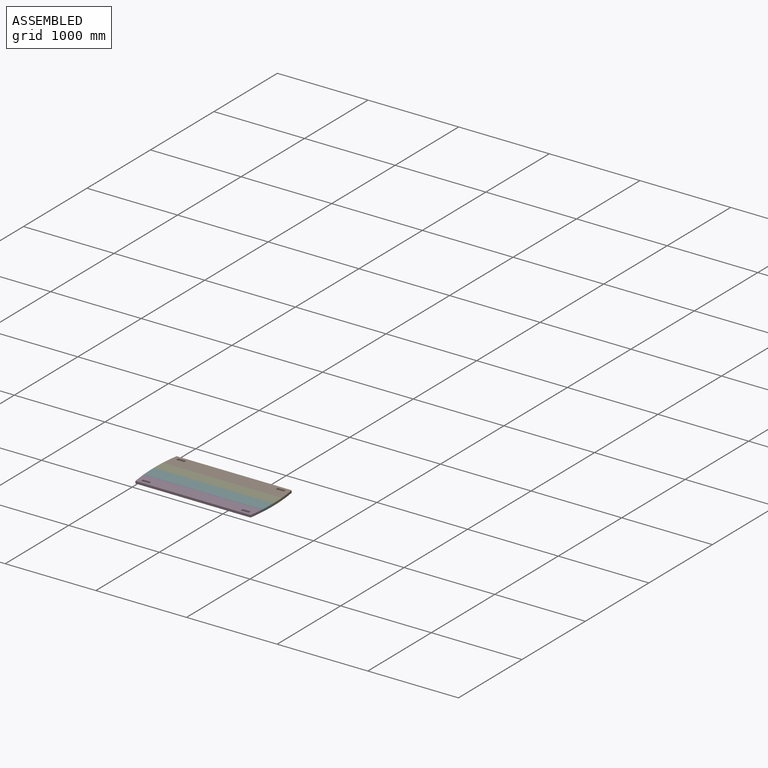
[diagram: assembled view]
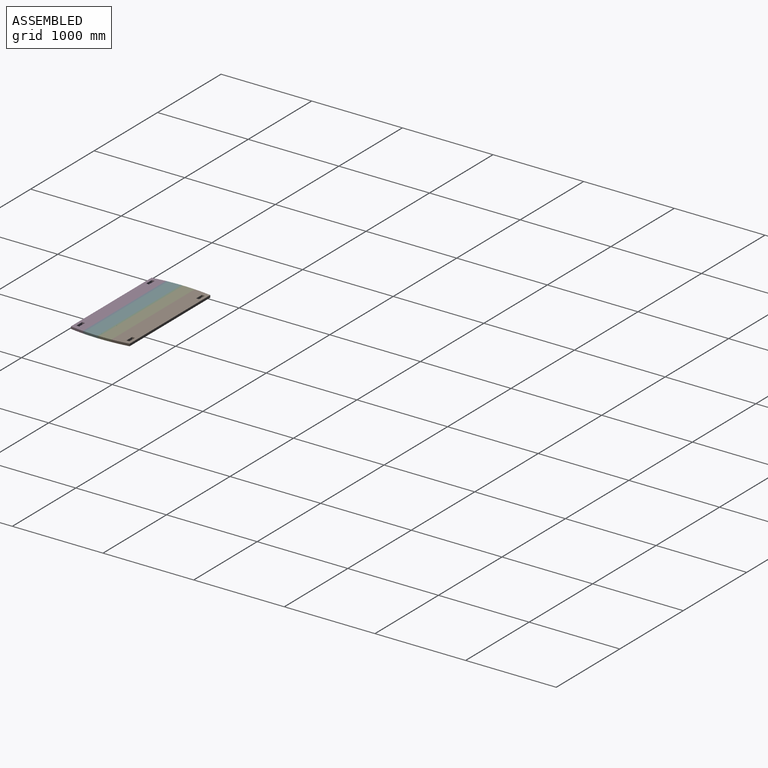
[diagram: assembled view, second angle]
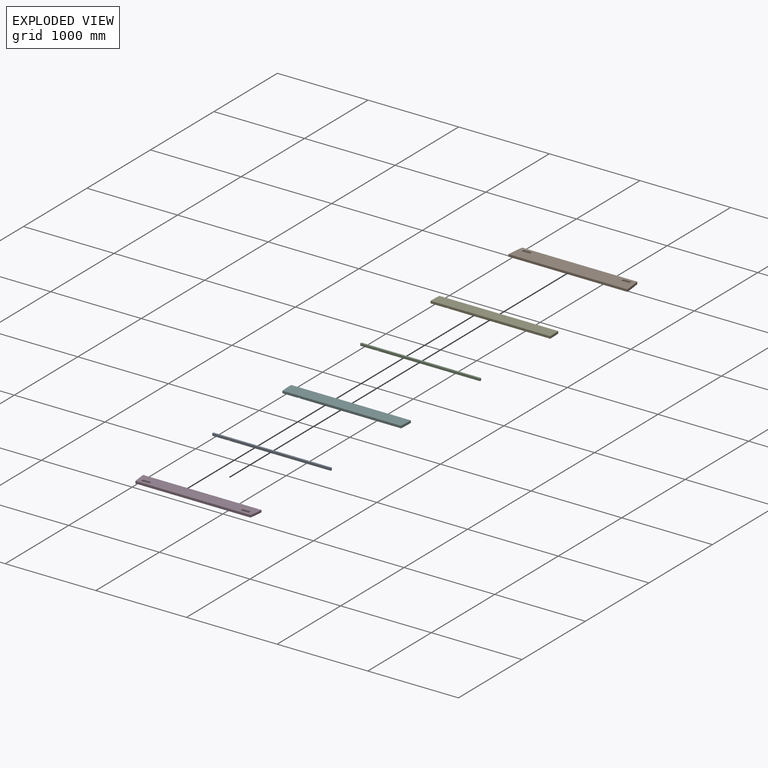
[diagram: exploded view]
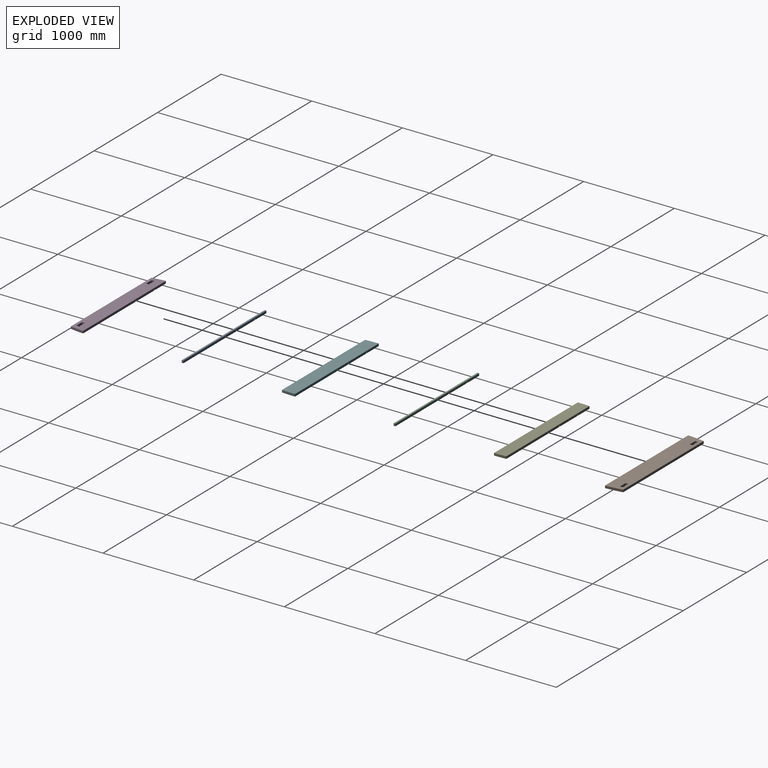
[diagram: exploded view, second angle]
ASSEMBLY  parts=6 mates=5
PART A: 14 faces, bbox 1308.7x19.1x25.4 mm
  f0: plane 279.38x19.05mm, normal (0,0,-1), area 5322.2mm2, adj f2,f3,f8,f12
  f1: plane 832.12x19.05mm, normal (0,0,-1), area 15837.4mm2, adj f2,f3,f5,f9
  f2: plane 1308.65x25.4mm, normal (0,1,0), area 32916.9mm2, adj f0,f1,f4,f5,f6,f7,f8,f9
  f3: plane 1305.55x25.4mm, normal (0,-1,0), area 32838.3mm2, adj f0,f1,f4,f5,f6,f7,f8,f9
  f4: cylinder r=2077.24mm len=25.4mm, axis (0,0,-1), area 485.5mm2, adj f2,f3,f6,f7
  f5: cylinder r=2077.24mm len=25.4mm, axis (0,0,-1), area 485.5mm2, adj f1,f2,f3,f6
  f6: plane 1308.65x19.05mm, normal (0,0,1), area 24900.8mm2, adj f2,f3,f4,f5
  f7: plane 178.07x19.05mm, normal (0,0,-1), area 3377.7mm2, adj f2,f3,f4,f11
  f8: plane 19.05x12.7mm, normal (0.97,0,0.24), area 249.3mm2, adj f0,f2,f3,f10
  f9: plane 19.05x12.7mm, normal (-0.97,0,0.24), area 249.3mm2, adj f1,f2,f3,f10
  f10: plane 19.05x15.88mm, normal (0,0,-1), area 302.4mm2, adj f2,f3,f8,f9
  f11: plane 19.05x12.7mm, normal (0.97,0,0.24), area 249.3mm2, adj f2,f3,f7,f13
  f12: plane 19.05x12.7mm, normal (-0.97,0,0.24), area 249.3mm2, adj f0,f2,f3,f13
  f13: plane 19.05x15.88mm, normal (0,0,-1), area 302.4mm2, adj f2,f3,f11,f12
PART B: 14 faces, bbox 1311.6x185.7x25.4 mm
  f0: plane 1311.61x185.74mm, normal (0,0,1), area 234629.6mm2, adj f2,f3,f4,f5,f6,f7,f8,f9
  f1: plane 1311.61x185.74mm, normal (0,0,-1), area 234629.6mm2, adj f2,f3,f4,f5,f6,f7,f8,f9
  f2: cylinder r=2077.24mm len=185.74mm, axis (0,0,-1), area 4748.8mm2, adj f0,f1,f3,f5
  f3: plane 1311.61x25.4mm, normal (0,-1,0), area 33314.8mm2, adj f0,f1,f2,f4
  f4: cylinder r=2077.24mm len=185.74mm, axis (0,0,-1), area 4748.8mm2, adj f0,f1,f3,f5
  f5: plane 1270x25.4mm, normal (0,1,0), area 32258mm2, adj f0,f1,f2,f4
  f6: plane 31.75x25.4mm, normal (-1,0,0), area 806.4mm2, adj f0,f1,f7,f9
  f7: plane 88.9x25.4mm, normal (0,-1,0), area 2258.1mm2, adj f0,f1,f6,f8
  f8: plane 31.75x25.4mm, normal (1,0,0), area 806.4mm2, adj f0,f1,f7,f9
  f9: plane 88.9x25.4mm, normal (0,1,0), area 2258.1mm2, adj f0,f1,f6,f8
  f10: plane 88.9x25.4mm, normal (0,1,0), area 2258.1mm2, adj f0,f1,f11,f13
  f11: plane 31.75x25.4mm, normal (-1,0,0), area 806.4mm2, adj f0,f1,f10,f12
  f12: plane 88.9x25.4mm, normal (0,-1,0), area 2258.1mm2, adj f0,f1,f11,f13
  f13: plane 31.75x25.4mm, normal (1,0,0), area 806.4mm2, adj f0,f1,f10,f12
PART C: 14 faces, bbox 1320.8x19.1x25.4 mm
  f0: plane 279.38x19.05mm, normal (0,0,-1), area 5322.2mm2, adj f2,f3,f8,f12
  f1: plane 838.19x19.05mm, normal (0,0,-1), area 15967.4mm2, adj f2,f3,f4,f9
  f2: plane 1320.78x25.4mm, normal (0,1,0), area 33225mm2, adj f0,f1,f4,f5,f6,f7,f8,f9
  f3: plane 1320.72x25.4mm, normal (0,-1,0), area 33223.6mm2, adj f0,f1,f4,f5,f6,f7,f8,f9
  f4: cylinder r=2077.24mm len=25.4mm, axis (0,0,-1), area 483.9mm2, adj f1,f2,f3,f6
  f5: cylinder r=2077.24mm len=25.4mm, axis (0,0,-1), area 483.9mm2, adj f2,f3,f6,f7
  f6: plane 1320.8x19.05mm, normal (0,0,1), area 25160.9mm2, adj f2,f3,f4,f5
  f7: plane 184.14x19.05mm, normal (0,0,-1), area 3507.7mm2, adj f2,f3,f5,f11
  f8: plane 19.05x12.7mm, normal (0.97,0,0.24), area 249.3mm2, adj f0,f2,f3,f10
  f9: plane 19.05x12.7mm, normal (-0.97,0,0.24), area 249.3mm2, adj f1,f2,f3,f10
  f10: plane 19.05x15.88mm, normal (0,0,-1), area 302.4mm2, adj f2,f3,f8,f9
  f11: plane 19.05x12.7mm, normal (0.97,0,0.24), area 249.3mm2, adj f2,f3,f7,f13
  f12: plane 19.05x12.7mm, normal (-0.97,0,0.24), area 249.3mm2, adj f0,f2,f3,f13
  f13: plane 19.05x15.88mm, normal (0,0,-1), area 302.4mm2, adj f2,f3,f11,f12
PART D: 22 faces, bbox 1305.6x146.1x25.4 mm
  f0: plane 1305.55x25.4mm, normal (0,1,0), area 32838.3mm2, adj f1,f2,f3,f4,f14,f15,f16,f18
  f1: plane 1305.55x146.05mm, normal (0,0,1), area 182690.3mm2, adj f0,f3,f4,f5,f6,f7,f8,f9
  f2: plane 1305.55x146.05mm, normal (0,0,-1), area 181963.2mm2, adj f0,f3,f4,f5,f6,f7,f8,f9
  f3: cylinder r=2077.24mm len=146.05mm, axis (0,0,-1), area 3737.8mm2, adj f0,f1,f2,f5
  f4: cylinder r=2077.24mm len=146.05mm, axis (0,0,-1), area 3737.8mm2, adj f0,f1,f2,f5
  f5: plane 1270x25.4mm, normal (0,-1,0), area 32258mm2, adj f1,f2,f3,f4
  f6: plane 31.75x25.4mm, normal (-1,0,0), area 806.4mm2, adj f1,f2,f7,f9
  f7: plane 88.9x25.4mm, normal (0,-1,0), area 2258.1mm2, adj f1,f2,f6,f8
  f8: plane 31.75x25.4mm, normal (1,0,0), area 806.4mm2, adj f1,f2,f7,f9
  f9: plane 88.9x25.4mm, normal (0,1,0), area 2258.1mm2, adj f1,f2,f6,f8
  f10: plane 88.9x25.4mm, normal (0,1,0), area 2258.1mm2, adj f1,f2,f11,f13
  f11: plane 31.75x25.4mm, normal (-1,0,0), area 806.4mm2, adj f1,f2,f10,f12
  f12: plane 88.9x25.4mm, normal (0,-1,0), area 2258.1mm2, adj f1,f2,f11,f13
  f13: plane 31.75x25.4mm, normal (1,0,0), area 806.4mm2, adj f1,f2,f10,f12
  f14: plane 38.1x12.7mm, normal (0.97,0,0.24), area 498.7mm2, adj f0,f2,f16,f17
  f15: plane 38.1x12.7mm, normal (-0.97,0,0.24), area 498.7mm2, adj f0,f2,f16,f17
  f16: plane 38.1x15.88mm, normal (0,0,-1), area 604.8mm2, adj f0,f14,f15,f17
  f17: plane 15.88x12.7mm, normal (0,1,0), area 161.4mm2, adj f2,f14,f15,f16
  f18: plane 38.1x12.7mm, normal (0.97,0,0.24), area 498.7mm2, adj f0,f2,f20,f21
  f19: plane 38.1x12.7mm, normal (-0.97,0,0.24), area 498.7mm2, adj f0,f2,f20,f21
  f20: plane 38.1x15.88mm, normal (0,0,-1), area 604.8mm2, adj f0,f18,f19,f21
  f21: plane 15.88x12.7mm, normal (0,1,0), area 161.4mm2, adj f2,f18,f19,f20
PART E: 14 faces, bbox 1320.8x131.8x25.4 mm
  f0: plane 279.38x131.76mm, normal (0,0,-1), area 36812.2mm2, adj f2,f3,f8,f12
  f1: plane 838.18x131.76mm, normal (0,0,-1), area 110230.7mm2, adj f2,f3,f5,f9
  f2: plane 1311.61x25.4mm, normal (0,1,0), area 32992mm2, adj f0,f1,f4,f5,f6,f7,f8,f9
  f3: plane 1320.78x25.4mm, normal (0,-1,0), area 33225mm2, adj f0,f1,f4,f5,f6,f7,f8,f9
  f4: cylinder r=2077.24mm len=131.76mm, axis (0,0,-1), area 3349.4mm2, adj f2,f3,f6,f7
  f5: cylinder r=2077.24mm len=131.76mm, axis (0,0,-1), area 3349.4mm2, adj f1,f2,f3,f6
  f6: plane 1320.78x131.76mm, normal (0,0,1), area 173608.9mm2, adj f2,f3,f4,f5
  f7: plane 184.13x131.76mm, normal (0,0,-1), area 24051.4mm2, adj f2,f3,f4,f11
  f8: plane 131.76x12.7mm, normal (0.97,0,0.24), area 1724.6mm2, adj f0,f2,f3,f10
  f9: plane 131.76x12.7mm, normal (-0.97,0,0.24), area 1724.6mm2, adj f1,f2,f3,f10
  f10: plane 131.76x15.88mm, normal (0,0,-1), area 2091.7mm2, adj f2,f3,f8,f9
  f11: plane 131.76x12.7mm, normal (0.97,0,0.24), area 1724.6mm2, adj f2,f3,f7,f13
  f12: plane 131.76x12.7mm, normal (-0.97,0,0.24), area 1724.6mm2, adj f0,f2,f3,f13
  f13: plane 131.76x15.88mm, normal (0,0,-1), area 2091.7mm2, adj f2,f3,f11,f12
PART F: 14 faces, bbox 1320.7x146.1x25.4 mm
  f0: plane 279.38x146.05mm, normal (0,0,-1), area 40803.9mm2, adj f2,f3,f8,f12
  f1: plane 838.15x146.05mm, normal (0,0,-1), area 122096.7mm2, adj f2,f3,f5,f9
  f2: plane 1320.72x25.4mm, normal (0,1,0), area 33223.6mm2, adj f0,f1,f4,f5,f6,f7,f8,f9
  f3: plane 1308.65x25.4mm, normal (0,-1,0), area 32916.9mm2, adj f0,f1,f4,f5,f6,f7,f8,f9
  f4: cylinder r=2077.24mm len=146.05mm, axis (0,0,-1), area 3713.6mm2, adj f2,f3,f6,f7
  f5: cylinder r=2077.24mm len=146.05mm, axis (0,0,-1), area 3713.6mm2, adj f1,f2,f3,f6
  f6: plane 1320.72x146.05mm, normal (0,0,1), area 192260.6mm2, adj f2,f3,f4,f5
  f7: plane 184.1x146.05mm, normal (0,0,-1), area 26572.7mm2, adj f2,f3,f4,f11
  f8: plane 146.05x12.7mm, normal (0.97,0,0.24), area 1911.6mm2, adj f0,f2,f3,f10
  f9: plane 146.05x12.7mm, normal (-0.97,0,0.24), area 1911.6mm2, adj f1,f2,f3,f10
  f10: plane 146.05x15.88mm, normal (0,0,-1), area 2318.5mm2, adj f2,f3,f8,f9
  f11: plane 146.05x12.7mm, normal (0.97,0,0.24), area 1911.6mm2, adj f2,f3,f7,f13
  f12: plane 146.05x12.7mm, normal (-0.97,0,0.24), area 1911.6mm2, adj f0,f2,f3,f13
  f13: plane 146.05x15.88mm, normal (0,0,-1), area 2318.5mm2, adj f2,f3,f11,f12
PLACE A t=(-344.41,906.77,-378.64)mm
PLACE B t=(-344.41,906.77,-378.64)mm
PLACE C t=(-344.41,906.77,-378.64)mm
PLACE D t=(-344.41,906.77,-378.64)mm
PLACE E t=(-344.41,906.77,-378.64)mm
PLACE F t=(-344.41,906.77,-378.64)mm
MATE fastened C.f2 <-> E.f3  axis (0,1,0) through (-353.62,-1629.45,-365.89)mm
MATE fastened F.f2 <-> C.f3  axis (0,1,0) through (-353.62,-1648.5,-365.89)mm
MATE fastened D.f0 <-> A.f3  axis (0,1,0) through (-353.59,-1813.6,-365.89)mm
MATE fastened E.f2 <-> B.f3  axis (0,1,0) through (299,-1497.69,-365.94)mm
MATE fastened F.f3 <-> A.f2  axis (0,-1,0) through (-353.59,-1794.55,-365.89)mm
